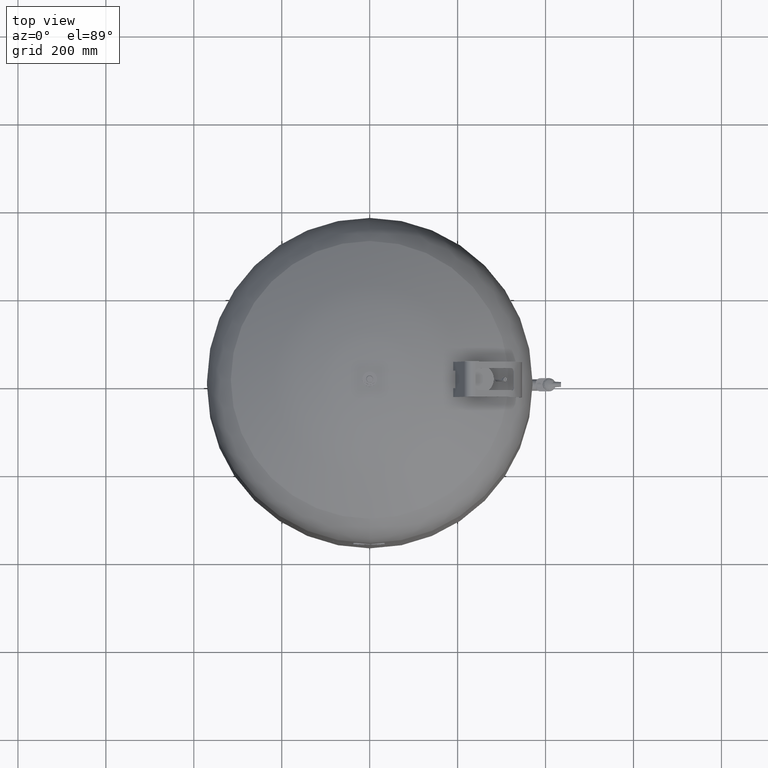
[diagram: clean part render]
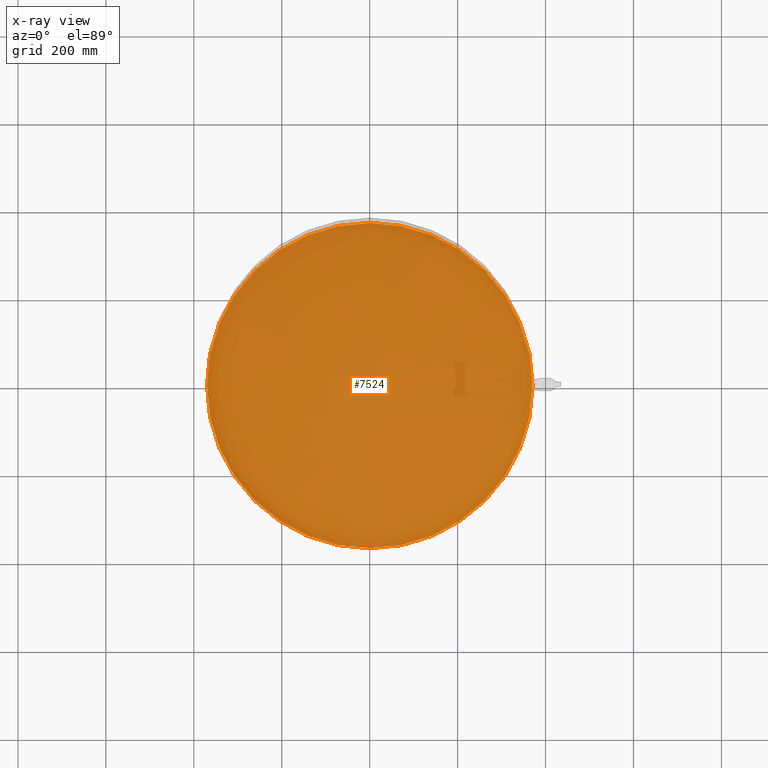
[diagram: x-ray — body ghosted, one internal face saturated and labeled with its STEP entity id]
A machine part, top view, then the same camera in x-ray: the body is ghosted and one INTERNAL B-rep face — a face not visible from any outside direction — is saturated and labeled: STEP entity #7524.
In plain terms, the highlighted planar face has unit normal (0, 0, 1).
Its self-contained STEP definition (entity closure, byte-faithful):
#7362=CARTESIAN_POINT('',(-370.000000000000060,-3.471874E-014,372.999999999999940));
#7363=VERTEX_POINT('',#7362);
#7372=CARTESIAN_POINT('',(370.0,1.059170E-014,372.999999999999940));
#7373=VERTEX_POINT('',#7372);
#7374=CARTESIAN_POINT('',(0.0,-3.471874E-014,372.999999999999940));
#7375=DIRECTION('',(0.0,0.0,1.0));
#7376=DIRECTION('',(-1.0,0.0,0.0));
#7377=AXIS2_PLACEMENT_3D('',#7374,#7375,#7376);
#7378=CIRCLE('',#7377,370.000000000000060);
#7379=EDGE_CURVE('',#7373,#7363,#7378,.T.);
#7505=CARTESIAN_POINT('',(0.0,-3.471874E-014,372.999999999999940));
#7506=DIRECTION('',(0.0,0.0,1.0));
#7507=DIRECTION('',(-1.0,0.0,0.0));
#7508=AXIS2_PLACEMENT_3D('',#7505,#7506,#7507);
#7509=CIRCLE('',#7508,370.000000000000060);
#7510=EDGE_CURVE('',#7363,#7373,#7509,.T.);
#7515=CARTESIAN_POINT('',(-185.000000000000030,-3.471874E-014,373.0));
#7516=DIRECTION('',(0.0,0.0,1.0));
#7517=DIRECTION('',(0.0,-1.0,0.0));
#7518=AXIS2_PLACEMENT_3D('',#7515,#7516,#7517);
#7519=PLANE('',#7518);
#7520=ORIENTED_EDGE('',*,*,#7510,.T.);
#7521=ORIENTED_EDGE('',*,*,#7379,.T.);
#7522=EDGE_LOOP('',(#7520,#7521));
#7523=FACE_OUTER_BOUND('',#7522,.T.);
#7524=ADVANCED_FACE('',(#7523),#7519,.T.);